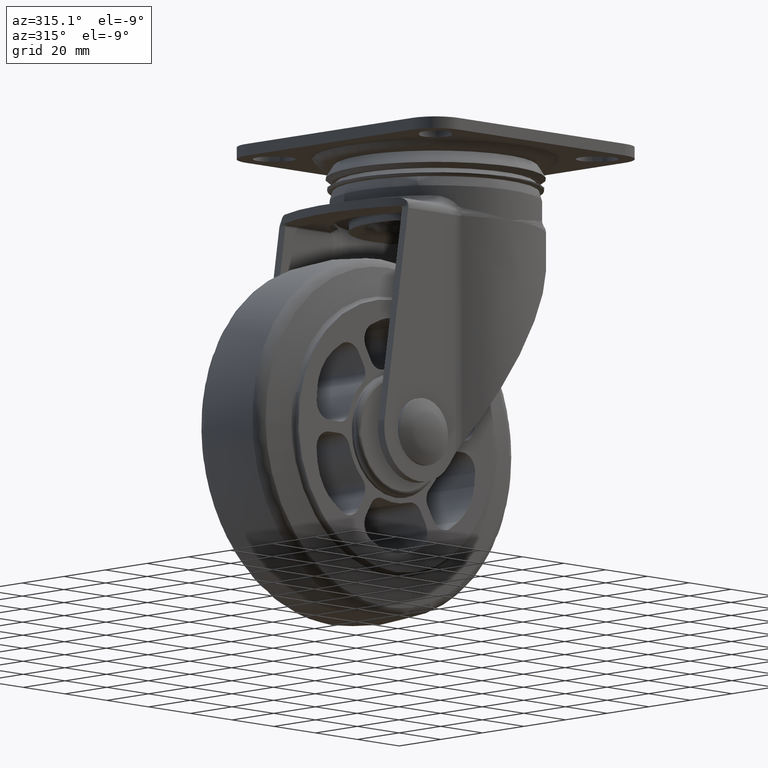
[diagram: clean part render]
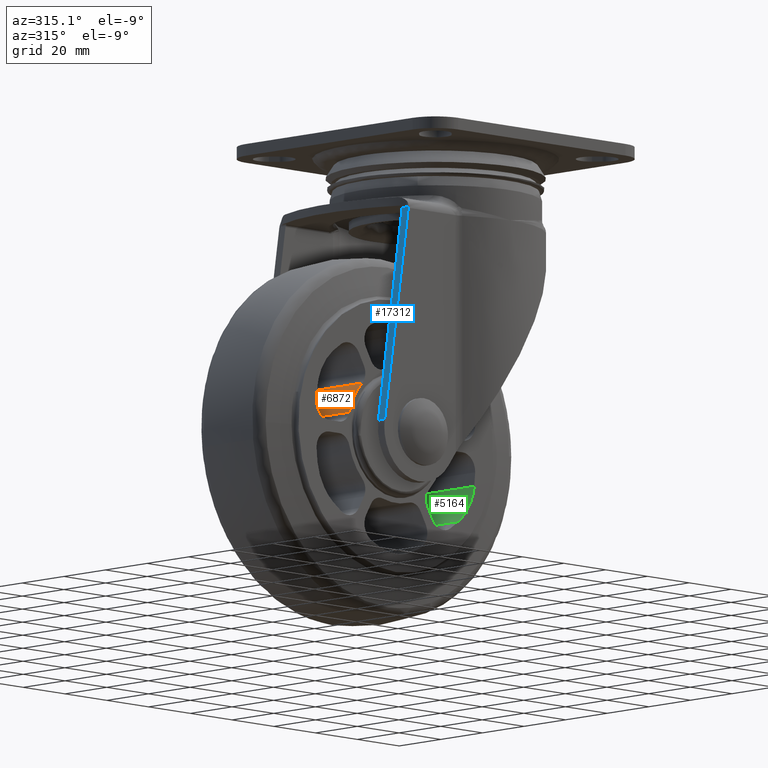
[diagram: same view with three faces highlighted in distinct colors, each labeled with its STEP entity id]
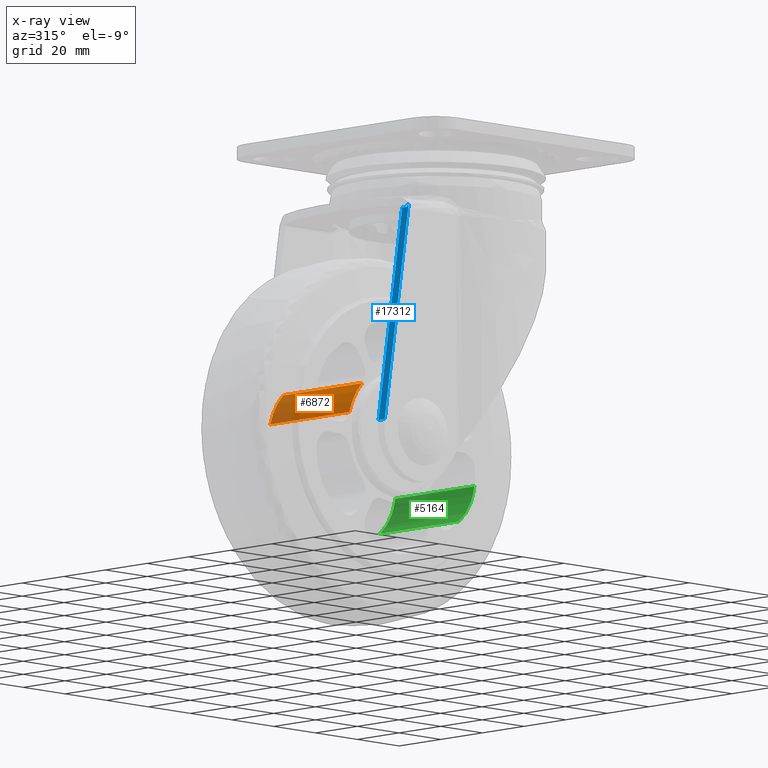
[diagram: x-ray of the same camera — body ghosted, the three highlighted faces saturated]
A machine part, auxiliary view with three faces highlighted in distinct colors.
The next image is the same camera in x-ray (body ghosted, the three faces saturated) — at least one of them is partly hidden behind the body in this view.
Their STEP definitions:

[orange] entity #6872 — the highlighted face is a freeform B-spline surface patch.
#6781=CARTESIAN_POINT('',(-16.114473665466999,19.0,16.411086530819802));
#6782=VERTEX_POINT('',#6781);
#6796=CARTESIAN_POINT('',(-16.114473665466999,-19.0,16.411086530819802));
#6797=VERTEX_POINT('',#6796);
#6798=CARTESIAN_POINT('',(-16.114473665466999,-19.0,16.411086530819802));
#6799=CARTESIAN_POINT('',(-16.114473665466999,19.0,16.411086530819802));
#6800=QUASI_UNIFORM_CURVE('',1,(#6798,#6799),.UNSPECIFIED.,.F.,.U.);
#6801=EDGE_CURVE('',#6797,#6782,#6800,.T.);
#6820=CARTESIAN_POINT('',(-15.970647804799491,-19.949999999999999,16.551084819281520));
#6821=CARTESIAN_POINT('',(-15.970647804799491,19.973750000000010,16.551084819281520));
#6822=CARTESIAN_POINT('',(-20.885801107592034,-19.950000000000003,11.808303112668005));
#6823=CARTESIAN_POINT('',(-20.885801107592034,19.973750000000006,11.808303112668005));
#6824=CARTESIAN_POINT('',(-22.415652087830953,-19.950000000000006,5.151557189560963));
#6825=CARTESIAN_POINT('',(-22.415652087830953,19.973750000000006,5.151557189560963));
#6833=(BOUNDED_SURFACE()B_SPLINE_SURFACE(1,2,((#6820,#6822,#6824),(#6821,#6823,#6825)),.UNSPECIFIED.,.F.,.F.,.U.)B_SPLINE_SURFACE_WITH_KNOTS((2,2),(3,3),(0.0,39.923750000000013),(0.0,13.371946240234550),.UNSPECIFIED.)GEOMETRIC_REPRESENTATION_ITEM()RATIONAL_B_SPLINE_SURFACE(((1.0,0.956290041281040,0.995139919137238),(1.0,0.956290041281040,0.995139919137238)))REPRESENTATION_ITEM('')SURFACE());
#6834=CARTESIAN_POINT('',(-22.269654259351700,19.0,5.749999927733490));
#6835=VERTEX_POINT('',#6834);
#6836=CARTESIAN_POINT('',(-16.114473665466999,19.0,16.411086530819802));
#6837=CARTESIAN_POINT('',(-20.672607536055100,19.000000000000004,11.935335373096827));
#6838=CARTESIAN_POINT('',(-22.269654259351721,19.0,5.749999927733497));
#6846=(BOUNDED_CURVE()B_SPLINE_CURVE(2,(#6836,#6837,#6838),.UNSPECIFIED.,.F.,.U.)CURVE()GEOMETRIC_REPRESENTATION_ITEM()QUASI_UNIFORM_CURVE()RATIONAL_B_SPLINE_CURVE((1.0,0.963525492176529,1.0))REPRESENTATION_ITEM(''));
#6847=EDGE_CURVE('',#6782,#6835,#6846,.T.);
#6848=ORIENTED_EDGE('',*,*,#6847,.T.);
#6849=CARTESIAN_POINT('',(-22.269654259351700,-19.0,5.749999927733490));
#6850=VERTEX_POINT('',#6849);
#6851=CARTESIAN_POINT('',(-22.269654259351700,-19.0,5.749999927733490));
#6852=CARTESIAN_POINT('',(-22.269654259351700,19.0,5.749999927733490));
#6853=QUASI_UNIFORM_CURVE('',1,(#6851,#6852),.UNSPECIFIED.,.F.,.U.);
#6854=EDGE_CURVE('',#6850,#6835,#6853,.T.);
#6855=ORIENTED_EDGE('',*,*,#6854,.F.);
#6856=CARTESIAN_POINT('',(-16.114473665466999,-19.0,16.411086530819802));
#6857=CARTESIAN_POINT('',(-20.672607536055100,-19.000000000000004,11.935335373096827));
#6858=CARTESIAN_POINT('',(-22.269654259351721,-19.0,5.749999927733497));
#6866=(BOUNDED_CURVE()B_SPLINE_CURVE(2,(#6856,#6857,#6858),.UNSPECIFIED.,.F.,.U.)CURVE()GEOMETRIC_REPRESENTATION_ITEM()QUASI_UNIFORM_CURVE()RATIONAL_B_SPLINE_CURVE((1.0,0.963525492176529,1.0))REPRESENTATION_ITEM(''));
#6867=EDGE_CURVE('',#6797,#6850,#6866,.T.);
#6868=ORIENTED_EDGE('',*,*,#6867,.F.);
#6869=ORIENTED_EDGE('',*,*,#6801,.T.);
#6870=EDGE_LOOP('',(#6848,#6855,#6868,#6869));
#6871=FACE_OUTER_BOUND('',#6870,.T.);
#6872=ADVANCED_FACE('',(#6871),#6833,.T.);

[blue] entity #17312 — the highlighted face is a freeform B-spline surface patch.
#15854=CARTESIAN_POINT('',(-5.962200111679130,-27.905427648255451,76.824509616932588));
#15855=VERTEX_POINT('',#15854);
#15889=CARTESIAN_POINT('',(-6.027042668987430,-28.0,76.400009000000011));
#15890=VERTEX_POINT('',#15889);
#15896=CARTESIAN_POINT('',(-5.962200111679130,-27.905427648255451,76.824509616932588));
#15897=CARTESIAN_POINT('',(-5.993012220564272,-28.000000000000004,76.622793957129929));
#15898=CARTESIAN_POINT('',(-6.027042668987430,-28.0,76.400009000000011));
#15906=(BOUNDED_CURVE()B_SPLINE_CURVE(2,(#15896,#15897,#15898),.UNSPECIFIED.,.F.,.U.)CURVE()GEOMETRIC_REPRESENTATION_ITEM()QUASI_UNIFORM_CURVE()RATIONAL_B_SPLINE_CURVE((1.0,0.976070604069052,1.0))REPRESENTATION_ITEM(''));
#15907=EDGE_CURVE('',#15855,#15890,#15906,.T.);
#16383=CARTESIAN_POINT('',(-5.962200111679130,-30.343024855543351,76.824509616932588));
#16384=VERTEX_POINT('',#16383);
#16402=CARTESIAN_POINT('',(-5.789169956555870,-30.684416160713550,77.957275051345405));
#16403=VERTEX_POINT('',#16402);
#16404=CARTESIAN_POINT('',(-5.789169956555831,-30.684416160713550,77.957275051345420));
#16405=CARTESIAN_POINT('',(-5.876169004848824,-30.513965802982870,77.387723953949106));
#16406=CARTESIAN_POINT('',(-5.962200111679097,-30.343024855543369,76.824509616932602));
#16414=(BOUNDED_CURVE()B_SPLINE_CURVE(2,(#16404,#16405,#16406),.UNSPECIFIED.,.F.,.U.)CURVE()GEOMETRIC_REPRESENTATION_ITEM()QUASI_UNIFORM_CURVE()RATIONAL_B_SPLINE_CURVE((1.0,0.999995980619659,1.0))REPRESENTATION_ITEM(''));
#16415=EDGE_CURVE('',#16403,#16384,#16414,.T.);
#16487=CARTESIAN_POINT('',(-5.962200111679130,-30.343024855543351,76.824509616932588));
#16488=CARTESIAN_POINT('',(-5.962200111679130,-27.905427648255451,76.824509616932588));
#16489=QUASI_UNIFORM_CURVE('',1,(#16487,#16488),.UNSPECIFIED.,.F.,.U.);
#16490=EDGE_CURVE('',#16384,#15855,#16489,.T.);
#16717=CARTESIAN_POINT('',(-6.027042668987430,-31.0,76.400009000000011));
#16718=VERTEX_POINT('',#16717);
#16724=CARTESIAN_POINT('',(-17.309329376071851,-31.0,2.538985215933395));
#16725=VERTEX_POINT('',#16724);
#16726=CARTESIAN_POINT('',(-17.309329376071851,-31.0,2.538985215933395));
#16727=CARTESIAN_POINT('',(-6.027042668987430,-31.0,76.400009000000011));
#16728=QUASI_UNIFORM_CURVE('',1,(#16726,#16727),.UNSPECIFIED.,.F.,.U.);
#16729=EDGE_CURVE('',#16725,#16718,#16728,.T.);
#17133=CARTESIAN_POINT('',(-17.309329376071851,-28.0,2.538985215933395));
#17134=VERTEX_POINT('',#17133);
#17152=CARTESIAN_POINT('',(-17.309329376071851,-28.0,2.538985215933395));
#17153=CARTESIAN_POINT('',(-17.309329376071851,-31.0,2.538985215933395));
#17154=QUASI_UNIFORM_CURVE('',1,(#17152,#17153),.UNSPECIFIED.,.F.,.U.);
#17155=EDGE_CURVE('',#17134,#16725,#17154,.T.);
#17282=CARTESIAN_POINT('',(-17.884761316748360,-31.154573860859792,-1.228158215170151));
#17283=CARTESIAN_POINT('',(-5.213737706884588,-31.154573860859792,81.724420505325128));
#17284=CARTESIAN_POINT('',(-17.884761316748360,-27.750854147074900,-1.228158215170151));
#17285=CARTESIAN_POINT('',(-5.213737706884588,-27.750854147074900,81.724420505325128));
#17286=B_SPLINE_SURFACE_WITH_KNOTS('',1,1,((#17282,#17284),(#17283,#17285)),.UNSPECIFIED.,.F.,.F.,.U.,(2,2),(2,2),(0.0,83.914749333485418),(0.0,3.403719713784895),.UNSPECIFIED.);
#17287=CARTESIAN_POINT('',(-6.027042668987420,-31.0,76.400009000000011));
#17288=CARTESIAN_POINT('',(-5.903221830835692,-31.0,77.210618950724381));
#17289=CARTESIAN_POINT('',(-5.789169956555861,-30.684416160713550,77.957275051345377));
#17297=(BOUNDED_CURVE()B_SPLINE_CURVE(2,(#17287,#17288,#17289),.UNSPECIFIED.,.F.,.U.)CURVE()GEOMETRIC_REPRESENTATION_ITEM()QUASI_UNIFORM_CURVE()RATIONAL_B_SPLINE_CURVE((1.0,0.980077558200981,1.0))REPRESENTATION_ITEM(''));
#17298=EDGE_CURVE('',#16718,#16403,#17297,.T.);
#17299=ORIENTED_EDGE('',*,*,#17298,.T.);
#17300=ORIENTED_EDGE('',*,*,#16415,.T.);
#17301=ORIENTED_EDGE('',*,*,#16490,.T.);
#17302=ORIENTED_EDGE('',*,*,#15907,.T.);
#17303=CARTESIAN_POINT('',(-17.309329376071851,-28.0,2.538985215933395));
#17304=CARTESIAN_POINT('',(-6.027042668987430,-28.0,76.400009000000011));
#17305=QUASI_UNIFORM_CURVE('',1,(#17303,#17304),.UNSPECIFIED.,.F.,.U.);
#17306=EDGE_CURVE('',#17134,#15890,#17305,.T.);
#17307=ORIENTED_EDGE('',*,*,#17306,.F.);
#17308=ORIENTED_EDGE('',*,*,#17155,.T.);
#17309=ORIENTED_EDGE('',*,*,#16729,.T.);
#17310=EDGE_LOOP('',(#17299,#17300,#17301,#17302,#17307,#17308,#17309));
#17311=FACE_OUTER_BOUND('',#17310,.T.);
#17312=ADVANCED_FACE('',(#17311),#17286,.T.);

[green] entity #5164 — the highlighted face is a freeform B-spline surface patch.
#5073=CARTESIAN_POINT('',(37.552911279774897,19.0,-13.075622382842241));
#5074=VERTEX_POINT('',#5073);
#5088=CARTESIAN_POINT('',(37.552911279774897,-19.0,-13.075622382842241));
#5089=VERTEX_POINT('',#5088);
#5090=CARTESIAN_POINT('',(37.552911279774897,-19.0,-13.075622382842241));
#5091=CARTESIAN_POINT('',(37.552911279774897,19.0,-13.075622382842241));
#5092=QUASI_UNIFORM_CURVE('',1,(#5090,#5091),.UNSPECIFIED.,.F.,.U.);
#5093=EDGE_CURVE('',#5089,#5074,#5092,.T.);
#5112=CARTESIAN_POINT('',(29.684178810223720,-19.949999999999999,-26.301772619101950));
#5113=CARTESIAN_POINT('',(29.684178810223720,19.973750000000010,-26.301772619101950));
#5114=CARTESIAN_POINT('',(36.728024381266252,-19.950000000000010,-21.066356371293871));
#5115=CARTESIAN_POINT('',(36.728024381266252,19.973750000000003,-21.066356371293871));
#5116=CARTESIAN_POINT('',(37.644238940482971,-19.950000000000003,-12.337903209479483));
#5117=CARTESIAN_POINT('',(37.644238940482971,19.973750000000006,-12.337903209479483));
#5125=(BOUNDED_SURFACE()B_SPLINE_SURFACE(1,2,((#5112,#5114,#5116),(#5113,#5115,#5117)),.UNSPECIFIED.,.F.,.F.,.U.)B_SPLINE_SURFACE_WITH_KNOTS((2,2),(3,3),(0.0,39.923750000000013),(0.0,16.780525075334019),.UNSPECIFIED.)GEOMETRIC_REPRESENTATION_ITEM()RATIONAL_B_SPLINE_SURFACE(((1.0,0.914683651433060,0.997753581581356),(1.0,0.914683651433060,0.997753581581356)))REPRESENTATION_ITEM('')SURFACE());
#5126=CARTESIAN_POINT('',(30.100276893866951,19.0,-25.983963864750152));
#5127=VERTEX_POINT('',#5126);
#5128=CARTESIAN_POINT('',(30.100276893866980,19.0,-25.983963864750191));
#5129=CARTESIAN_POINT('',(36.418277713037035,18.999999999999996,-21.026102354320059));
#5130=CARTESIAN_POINT('',(37.552911279774897,19.0,-13.075622382842241));
#5138=(BOUNDED_CURVE()B_SPLINE_CURVE(2,(#5128,#5129,#5130),.UNSPECIFIED.,.F.,.U.)CURVE()GEOMETRIC_REPRESENTATION_ITEM()QUASI_UNIFORM_CURVE()RATIONAL_B_SPLINE_CURVE((1.0,0.927979310163679,1.0))REPRESENTATION_ITEM(''));
#5139=EDGE_CURVE('',#5127,#5074,#5138,.T.);
#5140=ORIENTED_EDGE('',*,*,#5139,.F.);
#5141=CARTESIAN_POINT('',(30.100276893866951,-19.0,-25.983963864750152));
#5142=VERTEX_POINT('',#5141);
#5143=CARTESIAN_POINT('',(30.100276893866951,-19.0,-25.983963864750152));
#5144=CARTESIAN_POINT('',(30.100276893866951,19.0,-25.983963864750152));
#5145=QUASI_UNIFORM_CURVE('',1,(#5143,#5144),.UNSPECIFIED.,.F.,.U.);
#5146=EDGE_CURVE('',#5142,#5127,#5145,.T.);
#5147=ORIENTED_EDGE('',*,*,#5146,.F.);
#5148=CARTESIAN_POINT('',(30.100276893866980,-19.0,-25.983963864750191));
#5149=CARTESIAN_POINT('',(36.418277713037035,-18.999999999999996,-21.026102354320059));
#5150=CARTESIAN_POINT('',(37.552911279774897,-19.0,-13.075622382842241));
#5158=(BOUNDED_CURVE()B_SPLINE_CURVE(2,(#5148,#5149,#5150),.UNSPECIFIED.,.F.,.U.)CURVE()GEOMETRIC_REPRESENTATION_ITEM()QUASI_UNIFORM_CURVE()RATIONAL_B_SPLINE_CURVE((1.0,0.927979310163679,1.0))REPRESENTATION_ITEM(''));
#5159=EDGE_CURVE('',#5142,#5089,#5158,.T.);
#5160=ORIENTED_EDGE('',*,*,#5159,.T.);
#5161=ORIENTED_EDGE('',*,*,#5093,.T.);
#5162=EDGE_LOOP('',(#5140,#5147,#5160,#5161));
#5163=FACE_OUTER_BOUND('',#5162,.T.);
#5164=ADVANCED_FACE('',(#5163),#5125,.F.);